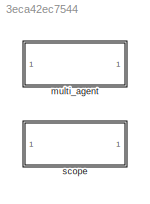
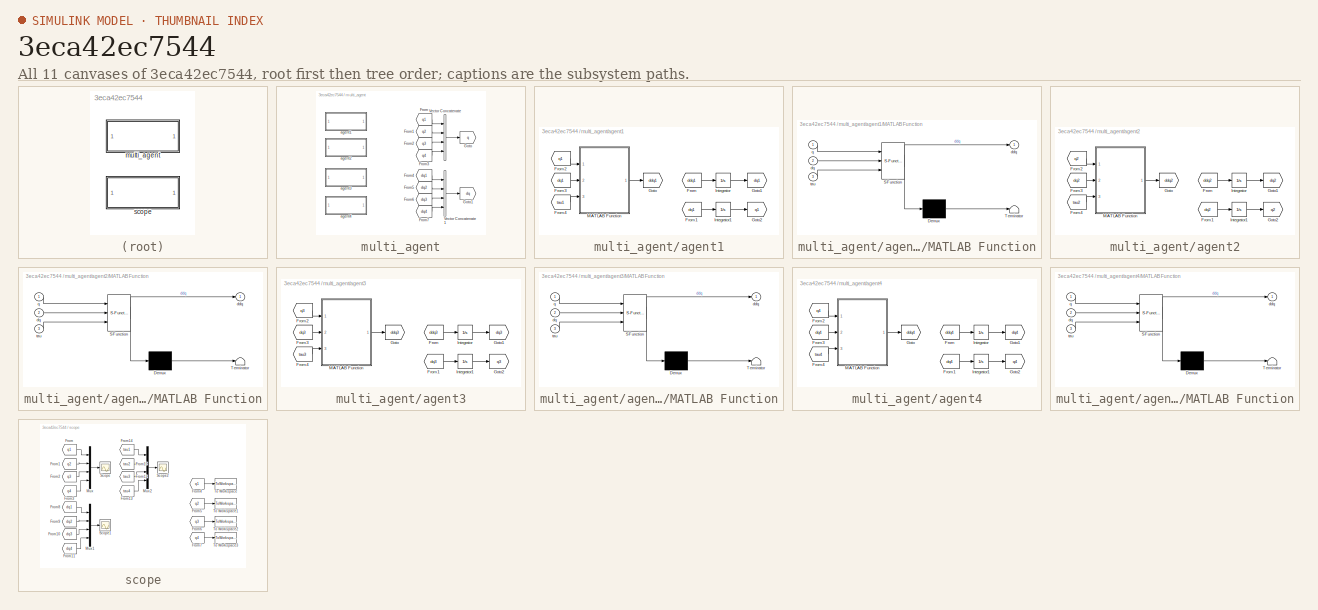
[diagram: thumbnail index - all 11 canvases of the model, root first then tree order]
MODEL slx_3eca42ec7544
KIND model
CONFIG AbsTol = auto
CONFIG EnableMultiTasking = off
CONFIG FixedStep = 0.005
CONFIG MaxStep = auto
CONFIG MinStep = auto
CONFIG RelTol = 1e-3
CONFIG SampleTimeConstraint = Unconstrained
CONFIG Solver = ode4
CONFIG SolverName = ode4
CONFIG StartTime = 0.0
CONFIG StopTime = tmax
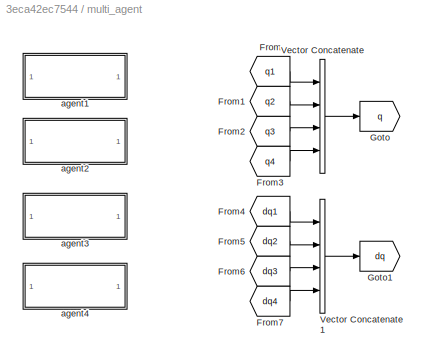
BLOCK [SubSystem] multi_agent
  Ports = []
  RequestExecContextInheritance = off
BLOCK [From] multi_agent/From
  GotoTag = q1
  TagVisibility = global
BLOCK [From] multi_agent/From1
  GotoTag = q2
  TagVisibility = global
BLOCK [From] multi_agent/From2
  GotoTag = q3
  TagVisibility = global
BLOCK [From] multi_agent/From3
  GotoTag = q4
  TagVisibility = global
BLOCK [From] multi_agent/From4
  GotoTag = dq1
  TagVisibility = global
BLOCK [From] multi_agent/From5
  GotoTag = dq2
  TagVisibility = global
BLOCK [From] multi_agent/From6
  GotoTag = dq3
  TagVisibility = global
BLOCK [From] multi_agent/From7
  GotoTag = dq4
  TagVisibility = global
BLOCK [Goto] multi_agent/Goto
  GotoTag = q
  TagVisibility = global
BLOCK [Goto] multi_agent/Goto1
  GotoTag = dq
  TagVisibility = global
BLOCK [Concatenate] multi_agent/Vector Concatenate
  NumInputs = 4
  Ports = [4, 1]
BLOCK [Concatenate] multi_agent/Vector Concatenate1
  NumInputs = 4
  Ports = [4, 1]
BLOCK [SubSystem] multi_agent/agent1
  Ports = []
  RequestExecContextInheritance = off
BLOCK [From] multi_agent/agent1/From
  GotoTag = ddq1
  TagVisibility = global
BLOCK [From] multi_agent/agent1/From1
  GotoTag = dq1
  TagVisibility = global
BLOCK [From] multi_agent/agent1/From2
  GotoTag = q1
  TagVisibility = global
BLOCK [From] multi_agent/agent1/From3
  GotoTag = dq1
  TagVisibility = global
BLOCK [From] multi_agent/agent1/From4
  GotoTag = tau1
BLOCK [Goto] multi_agent/agent1/Goto
  GotoTag = ddq1
  TagVisibility = global
BLOCK [Goto] multi_agent/agent1/Goto1
  GotoTag = dq1
  TagVisibility = global
BLOCK [Goto] multi_agent/agent1/Goto2
  GotoTag = q1
  TagVisibility = global
BLOCK [Integrator] multi_agent/agent1/Integrator
  InitialCondition = dq1_init
  Ports = [1, 1]
BLOCK [Integrator] multi_agent/agent1/Integrator1
  InitialCondition = q1_init
  Ports = [1, 1]
BLOCK [SubSystem] multi_agent/agent1/MATLAB Function
  ErrorFcn = Stateflow.Translate.translate
  PermitHierarchicalResolution = ExplicitOnly
  Ports = [3, 1]
  RequestExecContextInheritance = off
  SFBlockType = MATLAB Function
  TreatAsAtomicUnit = on
BLOCK [Demux] multi_agent/agent1/MATLAB Function/ Demux 
  Outputs = 1
  Ports = [1, 1]
BLOCK [S-Function] multi_agent/agent1/MATLAB Function/ SFunction 
  EnableBusSupport = on
  FunctionName = sf_sfun
  PortCounts = [3 2]
  Ports = [3, 2]
  SFcnIsStateOwnerBlock = off
  SFunctionDeploymentMode = off
  Tag = Stateflow S-Function multiagent 2
BLOCK [Terminator] multi_agent/agent1/MATLAB Function/ Terminator 
BLOCK [Outport] multi_agent/agent1/MATLAB Function/ddq
  IconDisplay = Port number
BLOCK [Inport] multi_agent/agent1/MATLAB Function/dq
  IconDisplay = Port number
  Port = 2
BLOCK [Inport] multi_agent/agent1/MATLAB Function/q
  IconDisplay = Port number
BLOCK [Inport] multi_agent/agent1/MATLAB Function/tau
  IconDisplay = Port number
  Port = 3
BLOCK [SubSystem] multi_agent/agent2
  Ports = []
  RequestExecContextInheritance = off
BLOCK [From] multi_agent/agent2/From
  GotoTag = ddq2
  TagVisibility = global
BLOCK [From] multi_agent/agent2/From1
  GotoTag = dq2
  TagVisibility = global
BLOCK [From] multi_agent/agent2/From2
  GotoTag = q2
  TagVisibility = global
BLOCK [From] multi_agent/agent2/From3
  GotoTag = dq2
  TagVisibility = global
BLOCK [From] multi_agent/agent2/From4
  GotoTag = tau2
BLOCK [Goto] multi_agent/agent2/Goto
  GotoTag = ddq2
  TagVisibility = global
BLOCK [Goto] multi_agent/agent2/Goto1
  GotoTag = dq2
  TagVisibility = global
BLOCK [Goto] multi_agent/agent2/Goto2
  GotoTag = q2
  TagVisibility = global
BLOCK [Integrator] multi_agent/agent2/Integrator
  InitialCondition = dq2_init
  Ports = [1, 1]
BLOCK [Integrator] multi_agent/agent2/Integrator1
  InitialCondition = q2_init
  Ports = [1, 1]
BLOCK [SubSystem] multi_agent/agent2/MATLAB Function
  ErrorFcn = Stateflow.Translate.translate
  PermitHierarchicalResolution = ExplicitOnly
  Ports = [3, 1]
  RequestExecContextInheritance = off
  SFBlockType = MATLAB Function
  TreatAsAtomicUnit = on
BLOCK [Demux] multi_agent/agent2/MATLAB Function/ Demux 
  Outputs = 1
  Ports = [1, 1]
BLOCK [S-Function] multi_agent/agent2/MATLAB Function/ SFunction 
  EnableBusSupport = on
  FunctionName = sf_sfun
  PortCounts = [3 2]
  Ports = [3, 2]
  SFcnIsStateOwnerBlock = off
  SFunctionDeploymentMode = off
  Tag = Stateflow S-Function multiagent 1
BLOCK [Terminator] multi_agent/agent2/MATLAB Function/ Terminator 
BLOCK [Outport] multi_agent/agent2/MATLAB Function/ddq
  IconDisplay = Port number
BLOCK [Inport] multi_agent/agent2/MATLAB Function/dq
  IconDisplay = Port number
  Port = 2
BLOCK [Inport] multi_agent/agent2/MATLAB Function/q
  IconDisplay = Port number
BLOCK [Inport] multi_agent/agent2/MATLAB Function/tau
  IconDisplay = Port number
  Port = 3
BLOCK [SubSystem] multi_agent/agent3
  Ports = []
  RequestExecContextInheritance = off
BLOCK [From] multi_agent/agent3/From
  GotoTag = ddq3
  TagVisibility = global
BLOCK [From] multi_agent/agent3/From1
  GotoTag = dq3
  TagVisibility = global
BLOCK [From] multi_agent/agent3/From2
  GotoTag = q3
  TagVisibility = global
BLOCK [From] multi_agent/agent3/From3
  GotoTag = dq3
  TagVisibility = global
BLOCK [From] multi_agent/agent3/From4
  GotoTag = tau3
BLOCK [Goto] multi_agent/agent3/Goto
  GotoTag = ddq3
  TagVisibility = global
BLOCK [Goto] multi_agent/agent3/Goto1
  GotoTag = dq3
  TagVisibility = global
BLOCK [Goto] multi_agent/agent3/Goto2
  GotoTag = q3
  TagVisibility = global
BLOCK [Integrator] multi_agent/agent3/Integrator
  InitialCondition = dq3_init
  Ports = [1, 1]
BLOCK [Integrator] multi_agent/agent3/Integrator1
  InitialCondition = q3_init
  Ports = [1, 1]
BLOCK [SubSystem] multi_agent/agent3/MATLAB Function
  ErrorFcn = Stateflow.Translate.translate
  PermitHierarchicalResolution = ExplicitOnly
  Ports = [3, 1]
  RequestExecContextInheritance = off
  SFBlockType = MATLAB Function
  TreatAsAtomicUnit = on
BLOCK [Demux] multi_agent/agent3/MATLAB Function/ Demux 
  Outputs = 1
  Ports = [1, 1]
BLOCK [S-Function] multi_agent/agent3/MATLAB Function/ SFunction 
  EnableBusSupport = on
  FunctionName = sf_sfun
  PortCounts = [3 2]
  Ports = [3, 2]
  SFcnIsStateOwnerBlock = off
  SFunctionDeploymentMode = off
  Tag = Stateflow S-Function multiagent 3
BLOCK [Terminator] multi_agent/agent3/MATLAB Function/ Terminator 
BLOCK [Outport] multi_agent/agent3/MATLAB Function/ddq
  IconDisplay = Port number
BLOCK [Inport] multi_agent/agent3/MATLAB Function/dq
  IconDisplay = Port number
  Port = 2
BLOCK [Inport] multi_agent/agent3/MATLAB Function/q
  IconDisplay = Port number
BLOCK [Inport] multi_agent/agent3/MATLAB Function/tau
  IconDisplay = Port number
  Port = 3
BLOCK [SubSystem] multi_agent/agent4
  Ports = []
  RequestExecContextInheritance = off
BLOCK [From] multi_agent/agent4/From
  GotoTag = ddq4
  TagVisibility = global
BLOCK [From] multi_agent/agent4/From1
  GotoTag = dq4
  TagVisibility = global
BLOCK [From] multi_agent/agent4/From2
  GotoTag = q4
  TagVisibility = global
BLOCK [From] multi_agent/agent4/From3
  GotoTag = dq4
  TagVisibility = global
BLOCK [From] multi_agent/agent4/From4
  GotoTag = tau4
BLOCK [Goto] multi_agent/agent4/Goto
  GotoTag = ddq4
  TagVisibility = global
BLOCK [Goto] multi_agent/agent4/Goto1
  GotoTag = dq4
  TagVisibility = global
BLOCK [Goto] multi_agent/agent4/Goto2
  GotoTag = q4
  TagVisibility = global
BLOCK [Integrator] multi_agent/agent4/Integrator
  InitialCondition = dq4_init
  Ports = [1, 1]
BLOCK [Integrator] multi_agent/agent4/Integrator1
  InitialCondition = q4_init
  Ports = [1, 1]
BLOCK [SubSystem] multi_agent/agent4/MATLAB Function
  ErrorFcn = Stateflow.Translate.translate
  PermitHierarchicalResolution = ExplicitOnly
  Ports = [3, 1]
  RequestExecContextInheritance = off
  SFBlockType = MATLAB Function
  TreatAsAtomicUnit = on
BLOCK [Demux] multi_agent/agent4/MATLAB Function/ Demux 
  Outputs = 1
  Ports = [1, 1]
BLOCK [S-Function] multi_agent/agent4/MATLAB Function/ SFunction 
  EnableBusSupport = on
  FunctionName = sf_sfun
  PortCounts = [3 2]
  Ports = [3, 2]
  SFcnIsStateOwnerBlock = off
  SFunctionDeploymentMode = off
  Tag = Stateflow S-Function multiagent 4
BLOCK [Terminator] multi_agent/agent4/MATLAB Function/ Terminator 
BLOCK [Outport] multi_agent/agent4/MATLAB Function/ddq
  IconDisplay = Port number
BLOCK [Inport] multi_agent/agent4/MATLAB Function/dq
  IconDisplay = Port number
  Port = 2
BLOCK [Inport] multi_agent/agent4/MATLAB Function/q
  IconDisplay = Port number
BLOCK [Inport] multi_agent/agent4/MATLAB Function/tau
  IconDisplay = Port number
  Port = 3
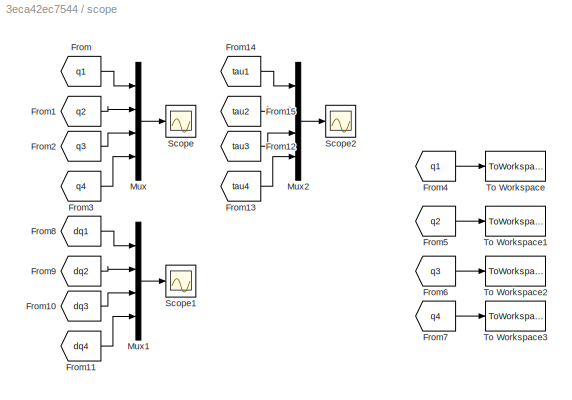
BLOCK [SubSystem] scope
  Ports = []
  RequestExecContextInheritance = off
BLOCK [From] scope/From
  GotoTag = q1
  TagVisibility = global
BLOCK [From] scope/From1
  GotoTag = q2
  TagVisibility = global
BLOCK [From] scope/From10
  GotoTag = dq3
  TagVisibility = global
BLOCK [From] scope/From11
  GotoTag = dq4
  TagVisibility = global
BLOCK [From] scope/From12
  GotoTag = tau3
BLOCK [From] scope/From13
  GotoTag = tau4
BLOCK [From] scope/From14
  GotoTag = tau1
BLOCK [From] scope/From15
  GotoTag = tau2
BLOCK [From] scope/From2
  GotoTag = q3
  TagVisibility = global
BLOCK [From] scope/From3
  GotoTag = q4
  TagVisibility = global
BLOCK [From] scope/From4
  GotoTag = q1
  TagVisibility = global
BLOCK [From] scope/From5
  GotoTag = q2
  TagVisibility = global
BLOCK [From] scope/From6
  GotoTag = q3
  TagVisibility = global
BLOCK [From] scope/From7
  GotoTag = q4
  TagVisibility = global
BLOCK [From] scope/From8
  GotoTag = dq1
  TagVisibility = global
BLOCK [From] scope/From9
  GotoTag = dq2
  TagVisibility = global
BLOCK [Mux] scope/Mux
  DisplayOption = bar
  Ports = [4, 1]
BLOCK [Mux] scope/Mux1
  DisplayOption = bar
  Ports = [4, 1]
BLOCK [Mux] scope/Mux2
  DisplayOption = bar
  Ports = [4, 1]
BLOCK [Scope] scope/Scope
  Floating = off
  NumInputPorts = 1
  Ports = [1]
  ScopeSpecificationString = Simulink.scopes.TimeScopeBlockCfg('CurrentConfiguration', extmgr.ConfigurationSet(extmgr.Configuration('Core','General UI',true),extmgr.Configuration('Core','Source UI',true),extmgr.Configuration('Sources','WiredSimulink',true),extmgr.Configuration('Visuals','Time Domain',true,'SerializedDisplays',{struct('MinYLimReal','-26.9483','MaxYLimReal','33.21792','YLabelReal','','MinYLimMag','0.00000','Max...<+1508ch>
BLOCK [Scope] scope/Scope1
  Floating = off
  NumInputPorts = 1
  Ports = [1]
  ScopeSpecificationString = Simulink.scopes.TimeScopeBlockCfg('CurrentConfiguration', extmgr.ConfigurationSet(extmgr.Configuration('Core','General UI',true),extmgr.Configuration('Core','Source UI',true),extmgr.Configuration('Sources','WiredSimulink',true,'DataLoggingVariableName','ScopeData1'),extmgr.Configuration('Visuals','Time Domain',true,'SerializedDisplays',{struct('MinYLimReal','-23.98006','MaxYLimReal','24.56331','YL...<+1534ch>
BLOCK [Scope] scope/Scope2
  Floating = off
  NumInputPorts = 1
  Ports = [1]
  ScopeSpecificationString = Simulink.scopes.TimeScopeBlockCfg('CurrentConfiguration', extmgr.ConfigurationSet(extmgr.Configuration('Core','General UI',true),extmgr.Configuration('Core','Source UI',true),extmgr.Configuration('Sources','WiredSimulink',true,'DataLoggingVariableName','ScopeData2'),extmgr.Configuration('Visuals','Time Domain',true,'SerializedDisplays',{struct('MinYLimReal','-11.0554','MaxYLimReal','16.28445','YLa...<+1500ch>
BLOCK [ToWorkspace] scope/To Workspace
  FixptAsFi = on
  MaxDataPoints = inf
  Ports = [1]
  SampleTime = -1
  Save2DSignal = 3-D array (concatenate along third dimension)
  SaveFormat = Timeseries
  VariableName = q1
BLOCK [ToWorkspace] scope/To Workspace1
  FixptAsFi = on
  MaxDataPoints = inf
  Ports = [1]
  SampleTime = -1
  Save2DSignal = 3-D array (concatenate along third dimension)
  SaveFormat = Timeseries
  VariableName = q2
BLOCK [ToWorkspace] scope/To Workspace2
  FixptAsFi = on
  MaxDataPoints = inf
  Ports = [1]
  SampleTime = -1
  Save2DSignal = 3-D array (concatenate along third dimension)
  SaveFormat = Timeseries
  VariableName = q3
BLOCK [ToWorkspace] scope/To Workspace3
  FixptAsFi = on
  MaxDataPoints = inf
  Ports = [1]
  SampleTime = -1
  Save2DSignal = 3-D array (concatenate along third dimension)
  SaveFormat = Timeseries
  VariableName = q4
LINE multi_agent/From1:1 -> multi_agent/Vector Concatenate:2
LINE multi_agent/From2:1 -> multi_agent/Vector Concatenate:3
LINE multi_agent/From3:1 -> multi_agent/Vector Concatenate:4
LINE multi_agent/From4:1 -> multi_agent/Vector Concatenate1:1
LINE multi_agent/From5:1 -> multi_agent/Vector Concatenate1:2
LINE multi_agent/From6:1 -> multi_agent/Vector Concatenate1:3
LINE multi_agent/From7:1 -> multi_agent/Vector Concatenate1:4
LINE multi_agent/From:1 -> multi_agent/Vector Concatenate:1
LINE multi_agent/Vector Concatenate1:1 -> multi_agent/Goto1:1
LINE multi_agent/Vector Concatenate:1 -> multi_agent/Goto:1
LINE multi_agent/agent1/From1:1 -> multi_agent/agent1/Integrator1:1
LINE multi_agent/agent1/From2:1 -> multi_agent/agent1/MATLAB Function:1
LINE multi_agent/agent1/From3:1 -> multi_agent/agent1/MATLAB Function:2
LINE multi_agent/agent1/From4:1 -> multi_agent/agent1/MATLAB Function:3
LINE multi_agent/agent1/From:1 -> multi_agent/agent1/Integrator:1
LINE multi_agent/agent1/Integrator1:1 -> multi_agent/agent1/Goto2:1
LINE multi_agent/agent1/Integrator:1 -> multi_agent/agent1/Goto1:1
LINE multi_agent/agent1/MATLAB Function:1 -> multi_agent/agent1/Goto:1
LINE multi_agent/agent2/From1:1 -> multi_agent/agent2/Integrator1:1
LINE multi_agent/agent2/From2:1 -> multi_agent/agent2/MATLAB Function:1
LINE multi_agent/agent2/From3:1 -> multi_agent/agent2/MATLAB Function:2
LINE multi_agent/agent2/From4:1 -> multi_agent/agent2/MATLAB Function:3
LINE multi_agent/agent2/From:1 -> multi_agent/agent2/Integrator:1
LINE multi_agent/agent2/Integrator1:1 -> multi_agent/agent2/Goto2:1
LINE multi_agent/agent2/Integrator:1 -> multi_agent/agent2/Goto1:1
LINE multi_agent/agent2/MATLAB Function:1 -> multi_agent/agent2/Goto:1
LINE multi_agent/agent3/From1:1 -> multi_agent/agent3/Integrator1:1
LINE multi_agent/agent3/From2:1 -> multi_agent/agent3/MATLAB Function:1
LINE multi_agent/agent3/From3:1 -> multi_agent/agent3/MATLAB Function:2
LINE multi_agent/agent3/From4:1 -> multi_agent/agent3/MATLAB Function:3
LINE multi_agent/agent3/From:1 -> multi_agent/agent3/Integrator:1
LINE multi_agent/agent3/Integrator1:1 -> multi_agent/agent3/Goto2:1
LINE multi_agent/agent3/Integrator:1 -> multi_agent/agent3/Goto1:1
LINE multi_agent/agent3/MATLAB Function:1 -> multi_agent/agent3/Goto:1
LINE multi_agent/agent4/From1:1 -> multi_agent/agent4/Integrator1:1
LINE multi_agent/agent4/From2:1 -> multi_agent/agent4/MATLAB Function:1
LINE multi_agent/agent4/From3:1 -> multi_agent/agent4/MATLAB Function:2
LINE multi_agent/agent4/From4:1 -> multi_agent/agent4/MATLAB Function:3
LINE multi_agent/agent4/From:1 -> multi_agent/agent4/Integrator:1
LINE multi_agent/agent4/Integrator1:1 -> multi_agent/agent4/Goto2:1
LINE multi_agent/agent4/Integrator:1 -> multi_agent/agent4/Goto1:1
LINE multi_agent/agent4/MATLAB Function:1 -> multi_agent/agent4/Goto:1
LINE scope/From10:1 -> scope/Mux1:3
LINE scope/From11:1 -> scope/Mux1:4
LINE scope/From12:1 -> scope/Mux2:3
LINE scope/From13:1 -> scope/Mux2:4
LINE scope/From14:1 -> scope/Mux2:1
LINE scope/From15:1 -> scope/Mux2:2
LINE scope/From1:1 -> scope/Mux:2
LINE scope/From2:1 -> scope/Mux:3
LINE scope/From3:1 -> scope/Mux:4
LINE scope/From4:1 -> scope/To Workspace:1
LINE scope/From5:1 -> scope/To Workspace1:1
LINE scope/From6:1 -> scope/To Workspace2:1
LINE scope/From7:1 -> scope/To Workspace3:1
LINE scope/From8:1 -> scope/Mux1:1
LINE scope/From9:1 -> scope/Mux1:2
LINE scope/From:1 -> scope/Mux:1
LINE scope/Mux1:1 -> scope/Scope1:1
LINE scope/Mux2:1 -> scope/Scope2:1
LINE scope/Mux:1 -> scope/Scope:1
CHART multi_agent/agent2/MATLAB Function states=1 transitions=1
  STATE_LABEL 'eML_blk_kernel()'
  STATE_LABEL 'SCRIPT:\nfunction ddq = fcn(q,dq,tau)\n\np1=2.9;p2=0.76;p3=0.87;p4=3.04;p5=0.87;g=9.81;\nq1=q(1);q2=q(2);dq1=dq(1);dq2=dq(2);\n\nM=[p1+p2+2*p3*cos(q2) p2+p3*cos(q2);\n   p2+p3*cos(q2)      p2];\nC=[-p3*dq2*sin(q2) -p3*(dq1+dq2)*sin(q2);\n   p3*dq1*sin(q2)  0];\nG=[p4*g*cos(q1)+p5*g*cos(q1+q2);p5*g*cos(q1+q2)];\n\nddq=M\\(tau-C*dq-G);\n\n\n'  <repeated x4 — deduplicated; at blocks: MATLAB Function>
CHART multi_agent/agent1/MATLAB Function states=1 transitions=1
  STATE_LABEL 'eML_blk_kernel()'
CHART multi_agent/agent3/MATLAB Function states=1 transitions=1
  STATE_LABEL 'eML_blk_kernel()'
CHART multi_agent/agent4/MATLAB Function states=1 transitions=1
  STATE_LABEL 'eML_blk_kernel()'
